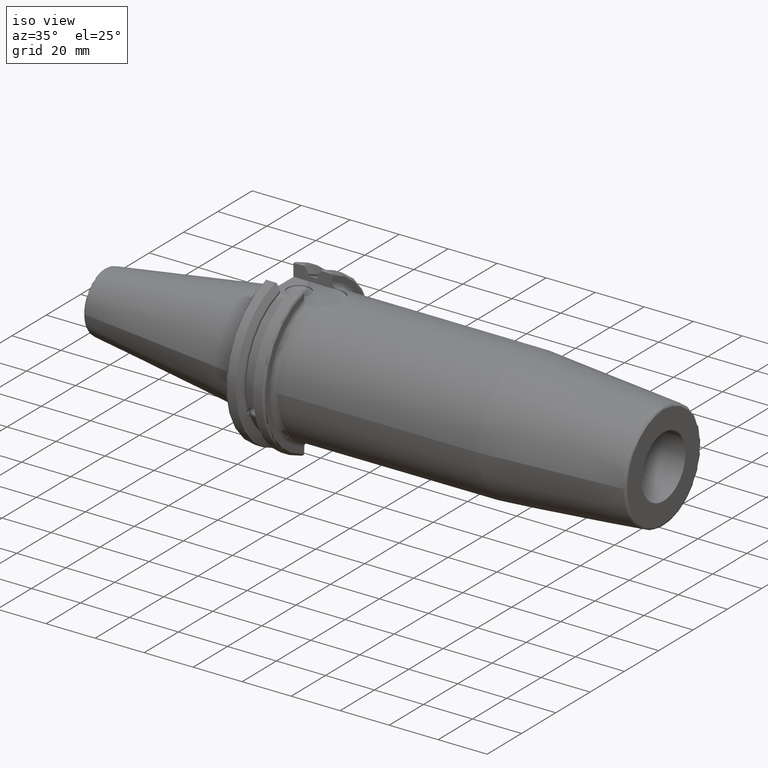
[diagram: clean part render]
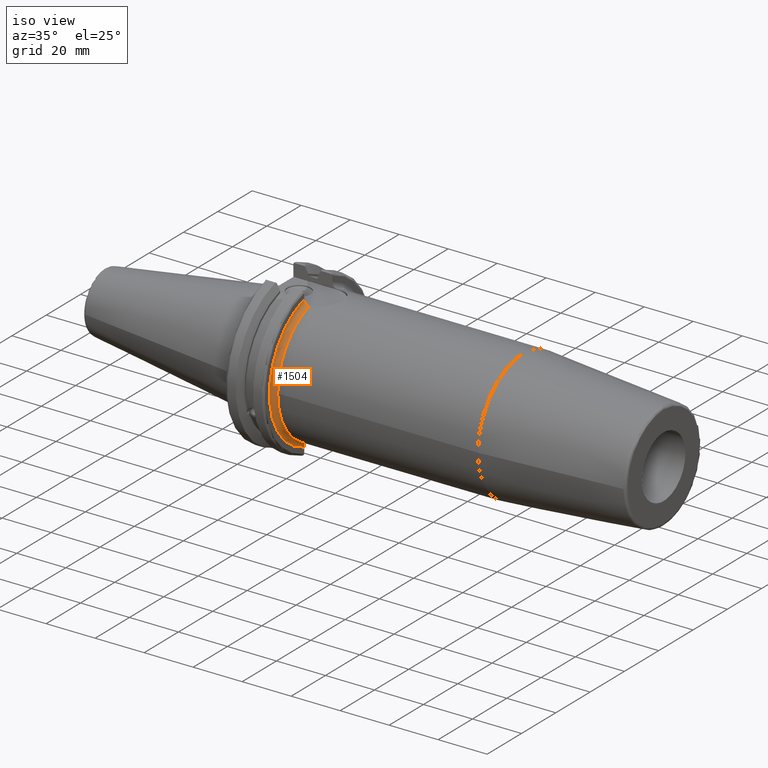
[diagram: same view with one face highlighted and labeled with its STEP entity id]
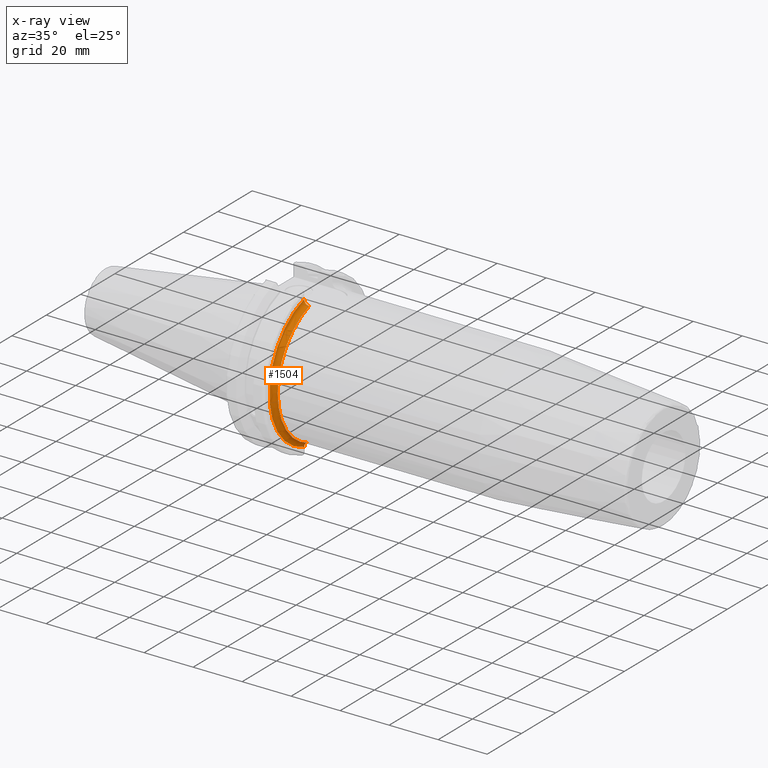
[diagram: x-ray of the same camera — body ghosted, the highlighted face saturated]
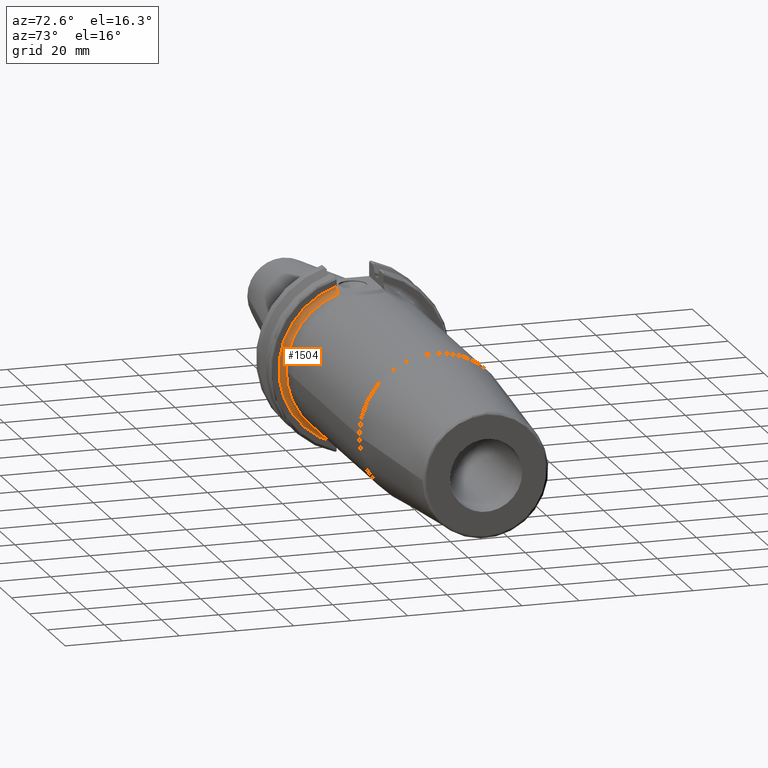
[diagram: same view with one face highlighted and labeled with its STEP entity id]
A machine part, iso view. The second image highlights one B-rep face of the part: STEP entity #1504.
The next image is the same camera in x-ray: the body ghosted, the highlighted face saturated — about 0% of this face is hidden behind the body in this view.
A second angle (auxiliary view) of the same face is appended — the face is thin or edge-on in the first view.
In plain terms, the highlighted toroidal blend (fillet) surface has major radius 28.5 mm and minor (blend) radius 2 mm.
Its self-contained STEP definition (entity closure, byte-faithful):
#111=TOROIDAL_SURFACE('',#1619,28.5,2.);
#122=FACE_OUTER_BOUND('',#209,.T.);
#209=EDGE_LOOP('',(#1011,#1012,#1013,#1014,#1015,#1016,#1017,#1018));
#311=CIRCLE('',#1616,26.5);
#313=CIRCLE('',#1618,26.5);
#314=CIRCLE('',#1620,28.5);
#558=B_SPLINE_CURVE_WITH_KNOTS('',3,(#2258,#2259,#2260,#2261),
 .UNSPECIFIED.,.F.,.F.,(4,4),(-0.00650170166186683,0.),.UNSPECIFIED.);
#561=B_SPLINE_CURVE_WITH_KNOTS('',3,(#2314,#2315,#2316,#2317,#2318,#2319),
 .UNSPECIFIED.,.F.,.F.,(4,2,4),(0.611963292187147,0.678472093757732,0.707811164416638),
 .UNSPECIFIED.);
#562=B_SPLINE_CURVE_WITH_KNOTS('',3,(#2321,#2322,#2323,#2324,#2325,#2326,
#2327,#2328),.UNSPECIFIED.,.F.,.F.,(4,2,2,4),(0.707811164416563,0.753289050617111,
0.830261667572551,0.908757487348896),.UNSPECIFIED.);
#563=B_SPLINE_CURVE_WITH_KNOTS('',3,(#2332,#2333,#2334,#2335,#2336,#2337,
#2338,#2339,#2340,#2341),.UNSPECIFIED.,.F.,.F.,(4,2,2,2,4),(0.30235413598056,
0.380849955756906,0.457822572712345,0.532639529571725,0.599148331142492),
 .UNSPECIFIED.);
#564=B_SPLINE_CURVE_WITH_KNOTS('',3,(#2342,#2343,#2344,#2345),
 .UNSPECIFIED.,.F.,.F.,(4,4),(0.599148331142492,0.605555811664728),
 .UNSPECIFIED.);
#603=VERTEX_POINT('',#2255);
#604=VERTEX_POINT('',#2257);
#606=VERTEX_POINT('',#2283);
#607=VERTEX_POINT('',#2285);
#611=VERTEX_POINT('',#2313);
#612=VERTEX_POINT('',#2320);
#613=VERTEX_POINT('',#2329);
#614=VERTEX_POINT('',#2331);
#761=EDGE_CURVE('',#604,#603,#558,.T.);
#765=EDGE_CURVE('',#607,#606,#311,.T.);
#770=EDGE_CURVE('',#606,#604,#313,.T.);
#771=EDGE_CURVE('',#603,#611,#561,.T.);
#772=EDGE_CURVE('',#611,#612,#562,.T.);
#773=EDGE_CURVE('',#612,#613,#314,.T.);
#774=EDGE_CURVE('',#614,#613,#563,.F.);
#775=EDGE_CURVE('',#607,#614,#564,.F.);
#1011=ORIENTED_EDGE('',*,*,#761,.T.);
#1012=ORIENTED_EDGE('',*,*,#771,.T.);
#1013=ORIENTED_EDGE('',*,*,#772,.T.);
#1014=ORIENTED_EDGE('',*,*,#773,.T.);
#1015=ORIENTED_EDGE('',*,*,#774,.F.);
#1016=ORIENTED_EDGE('',*,*,#775,.F.);
#1017=ORIENTED_EDGE('',*,*,#765,.T.);
#1018=ORIENTED_EDGE('',*,*,#770,.T.);
#1504=ADVANCED_FACE('',(#122),#111,.F.);
#1616=AXIS2_PLACEMENT_3D('',#2286,#1806,#1807);
#1618=AXIS2_PLACEMENT_3D('',#2311,#1812,#1813);
#1619=AXIS2_PLACEMENT_3D('',#2312,#1814,#1815);
#1620=AXIS2_PLACEMENT_3D('',#2330,#1816,#1817);
#1806=DIRECTION('center_axis',(-1.,0.,0.));
#1807=DIRECTION('ref_axis',(0.,-0.999990043367962,0.00446241693951007));
#1812=DIRECTION('center_axis',(-1.,0.,0.));
#1813=DIRECTION('ref_axis',(0.,-0.999990043367962,0.00446241693951007));
#1814=DIRECTION('center_axis',(-1.,0.,0.));
#1815=DIRECTION('ref_axis',(0.,0.,1.));
#1816=DIRECTION('center_axis',(1.,0.,0.));
#1817=DIRECTION('ref_axis',(0.,-0.999990043367962,0.00446241693951007));
#2255=CARTESIAN_POINT('',(20.985,-8.19000000000002,25.2037675190955));
#2257=CARTESIAN_POINT('',(21.05,-8.18974205943019,25.2027404263902));
#2258=CARTESIAN_POINT('Ctrl Pts',(21.05,-8.18974205943019,25.2027404263902));
#2259=CARTESIAN_POINT('Ctrl Pts',(21.028328846,-8.18991405813293,25.2026845346504));
#2260=CARTESIAN_POINT('Ctrl Pts',(21.0066596822934,-8.18999999999999,25.2030269550051));
#2261=CARTESIAN_POINT('Ctrl Pts',(20.985,-8.18999999999999,25.2037675190955));
#2283=CARTESIAN_POINT('',(21.05,-26.5,-3.24531401774049E-15));
#2285=CARTESIAN_POINT('',(21.05,-8.19,-25.2026566060009));
#2286=CARTESIAN_POINT('Origin',(21.05,0.,0.));
#2311=CARTESIAN_POINT('Origin',(21.05,0.,0.));
#2312=CARTESIAN_POINT('Origin',(21.05,0.,0.));
#2313=CARTESIAN_POINT('',(20.0244662958217,-8.19000000000165,25.5000000000049));
#2314=CARTESIAN_POINT('Ctrl Pts',(20.985,-8.19000000000002,25.2037675190955));
#2315=CARTESIAN_POINT('Ctrl Pts',(20.7571587980538,-8.19000000000002,25.2115576154689));
#2316=CARTESIAN_POINT('Ctrl Pts',(20.5016668821134,-8.19000000000002,25.2700465210143));
#2317=CARTESIAN_POINT('Ctrl Pts',(20.2077952907399,-8.19000000000002,25.3954068244709));
#2318=CARTESIAN_POINT('Ctrl Pts',(20.1144192970305,-8.19000000000002,25.4435713938449));
#2319=CARTESIAN_POINT('Ctrl Pts',(20.0244662958225,-8.19000000000002,25.5000000000061));
#2320=CARTESIAN_POINT('',(19.05,-8.19,27.2978735435565));
#2321=CARTESIAN_POINT('Ctrl Pts',(20.0244662958232,-8.19,25.5000000000057));
#2322=CARTESIAN_POINT('Ctrl Pts',(19.8850320103989,-8.19,25.5874688145189));
#2323=CARTESIAN_POINT('Ctrl Pts',(19.7543453755304,-8.19,25.695636986831));
#2324=CARTESIAN_POINT('Ctrl Pts',(19.4700477206645,-8.19,25.9885127973065));
#2325=CARTESIAN_POINT('Ctrl Pts',(19.3031737487845,-8.19,26.2472590391816));
#2326=CARTESIAN_POINT('Ctrl Pts',(19.1094531968333,-8.19,26.7279176858725));
#2327=CARTESIAN_POINT('Ctrl Pts',(19.05,-8.19,27.0362208109687));
#2328=CARTESIAN_POINT('Ctrl Pts',(19.05,-8.19,27.2978735435565));
#2329=CARTESIAN_POINT('',(19.05,-8.19,-27.2978735435565));
#2330=CARTESIAN_POINT('Origin',(19.05,0.,0.));
#2331=CARTESIAN_POINT('',(20.985,-8.18999999999999,-25.2037675190955));
#2332=CARTESIAN_POINT('Ctrl Pts',(19.05,-8.19,-27.2978735435565));
#2333=CARTESIAN_POINT('Ctrl Pts',(19.05,-8.19,-27.0362208109687));
#2334=CARTESIAN_POINT('Ctrl Pts',(19.1094531968333,-8.19,-26.7279176858725));
#2335=CARTESIAN_POINT('Ctrl Pts',(19.3031737487845,-8.19,-26.2472590391816));
#2336=CARTESIAN_POINT('Ctrl Pts',(19.4700477206645,-8.19,-25.9885127973065));
#2337=CARTESIAN_POINT('Ctrl Pts',(19.8224629313532,-8.19,-25.6254641098208));
#2338=CARTESIAN_POINT('Ctrl Pts',(20.0683591355164,-8.19,-25.4548877652789));
#2339=CARTESIAN_POINT('Ctrl Pts',(20.501666882114,-8.19,-25.2700465210141));
#2340=CARTESIAN_POINT('Ctrl Pts',(20.7571587980552,-8.19,-25.2115576154686));
#2341=CARTESIAN_POINT('Ctrl Pts',(20.9850000000019,-8.19,-25.2037675190955));
#2342=CARTESIAN_POINT('Ctrl Pts',(20.9850000000019,-8.19,-25.2037675190955));
#2343=CARTESIAN_POINT('Ctrl Pts',(21.0069502987467,-8.19,-25.2030170185662));
#2344=CARTESIAN_POINT('Ctrl Pts',(21.0286417315925,-8.19,-25.2026566060009));
#2345=CARTESIAN_POINT('Ctrl Pts',(21.05,-8.19,-25.2026566060009));